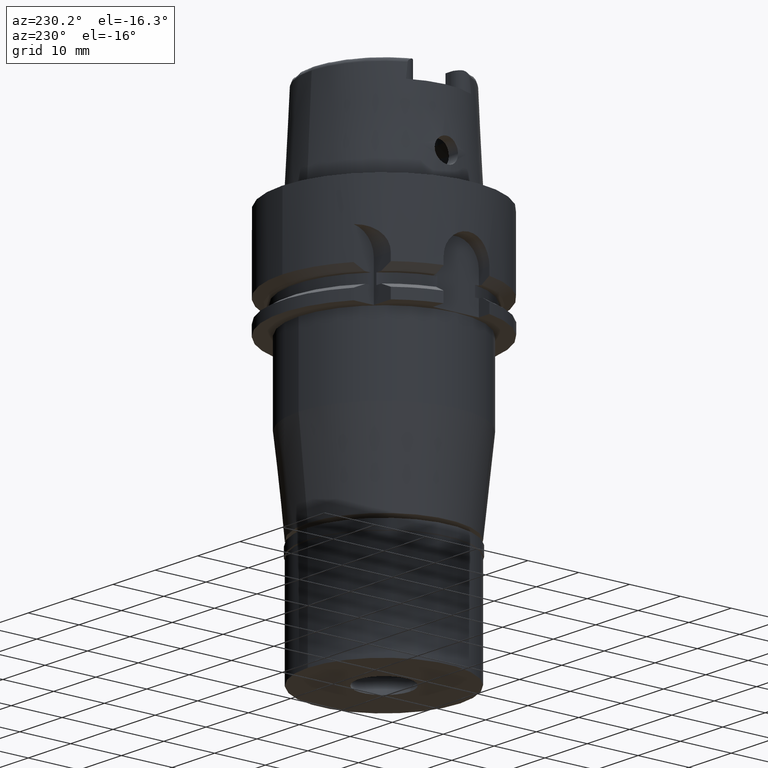
[diagram: clean part render]
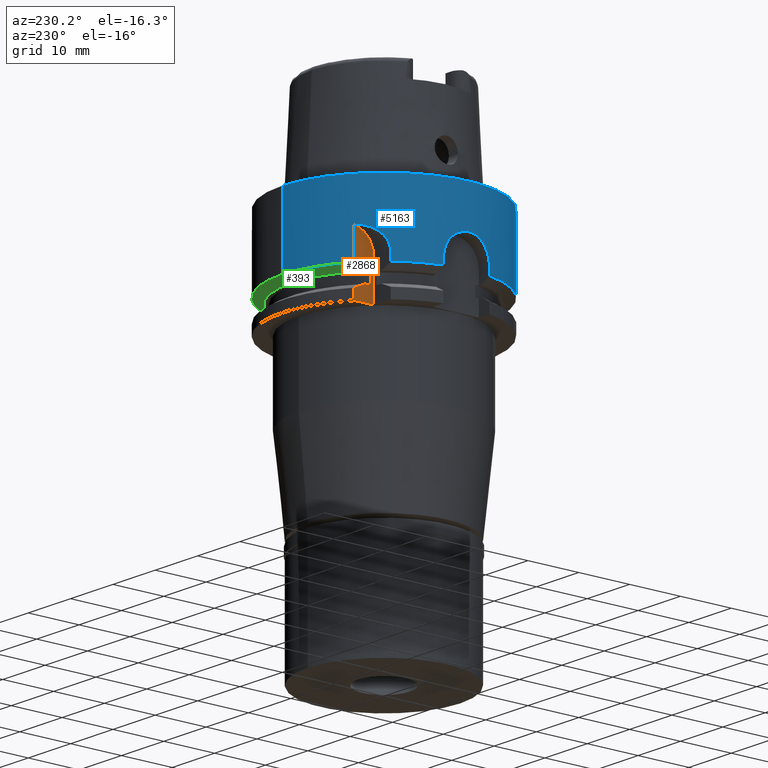
[diagram: same view with three faces highlighted in distinct colors, each labeled with its STEP entity id]
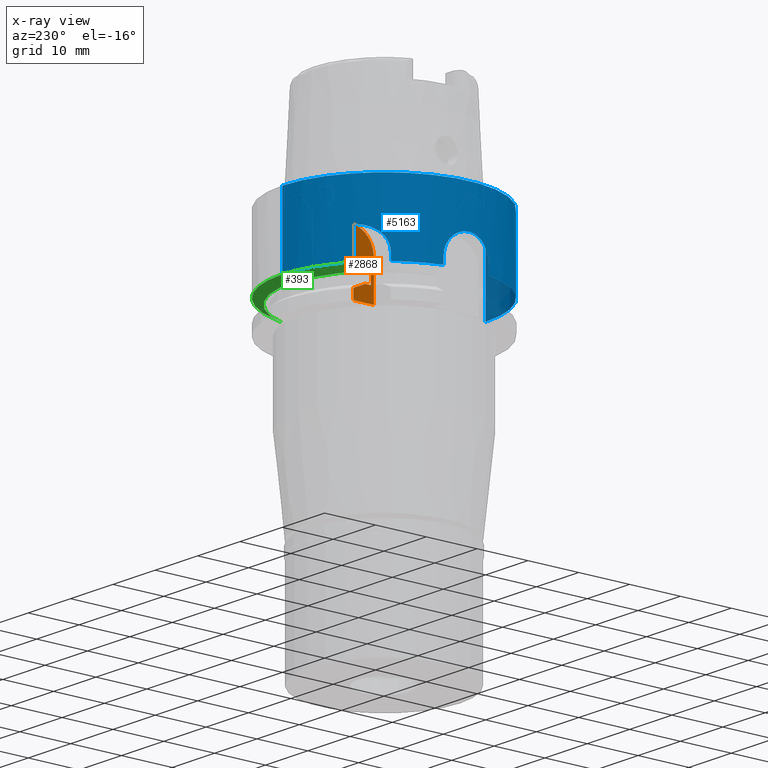
[diagram: x-ray of the same camera — body ghosted, the three highlighted faces saturated]
A machine part, auxiliary view with three faces highlighted in distinct colors.
The next image is the same camera in x-ray (body ghosted, the three faces saturated) — at least one of them is partly hidden behind the body in this view.
Their STEP definitions:

[orange] entity #2868 — the highlighted planar face has unit normal (1, 0, 0).
#16 = VERTEX_POINT ( 'NONE', #1858 ) ;
#32 = CARTESIAN_POINT ( 'NONE',  ( -12.00000000000000000, 12.59999999999999964, -15.00000000000000000 ) ) ;
#76 = VECTOR ( 'NONE', #1428, 1000.000000000000114 ) ;
#165 = EDGE_CURVE ( 'NONE', #2535, #3338, #5231, .T. ) ;
#192 = ORIENTED_EDGE ( 'NONE', *, *, #1375, .T. ) ;
#277 = EDGE_CURVE ( 'NONE', #389, #5203, #2154, .T. ) ;
#377 = CARTESIAN_POINT ( 'NONE',  ( -12.00000000000000000, 12.00000000000000000, -20.00000000000000000 ) ) ;
#389 = VERTEX_POINT ( 'NONE', #32 ) ;
#547 = B_SPLINE_CURVE_WITH_KNOTS ( 'NONE', 3,
 ( #2943, #2499, #4977, #4944 ),
 .UNSPECIFIED., .F., .F.,
 ( 4, 4 ),
 ( 0.0000000000000000000, 1.000000000000000000 ),
 .UNSPECIFIED. ) ;
#567 = ORIENTED_EDGE ( 'NONE', *, *, #733, .T. ) ;
#618 = DIRECTION ( 'NONE',  ( 0.0000000000000000000, -0.1111111111111011546, 0.9938079899999077149 ) ) ;
#647 = DIRECTION ( 'NONE',  ( 1.000000000000000000, 0.0000000000000000000, 0.0000000000000000000 ) ) ;
#733 = EDGE_CURVE ( 'NONE', #4935, #1835, #547, .T. ) ;
#756 = CARTESIAN_POINT ( 'NONE',  ( -12.00000248632000144, 13.72614523126000030, -15.00000000000000000 ) ) ;
#771 = CARTESIAN_POINT ( 'NONE',  ( -12.00000000000000000, 12.00000000000000000, -20.00000000000000000 ) ) ;
#803 = CARTESIAN_POINT ( 'NONE',  ( -12.00000000000000000, 12.00000000000000000, -20.00000000000000000 ) ) ;
#909 = CARTESIAN_POINT ( 'NONE',  ( -12.00000000000000000, 12.59999999999999964, -15.00000000000000000 ) ) ;
#963 = ORIENTED_EDGE ( 'NONE', *, *, #5317, .F. ) ;
#984 = CARTESIAN_POINT ( 'NONE',  ( -12.00000248632000144, 13.72614523126000030, -15.00000000000000000 ) ) ;
#1222 = ORIENTED_EDGE ( 'NONE', *, *, #165, .T. ) ;
#1231 = CARTESIAN_POINT ( 'NONE',  ( -12.00000000000000000, 12.59999999999999964, -15.00000000000000000 ) ) ;
#1255 = DIRECTION ( 'NONE',  ( -2.208557157325915231E-06, 0.9999999999975610621, -3.091661119828879814E-13 ) ) ;
#1375 = EDGE_CURVE ( 'NONE', #2432, #16, #4465, .T. ) ;
#1387 = CIRCLE ( 'NONE', #1553, 4.500000000000001776 ) ;
#1428 = DIRECTION ( 'NONE',  ( 4.229916271528087972E-06, 3.172442792338068757E-06, -0.9999999999860217370 ) ) ;
#1429 = CARTESIAN_POINT ( 'NONE',  ( -12.00000000000000000, 16.50000000000000000, -12.47213595500000061 ) ) ;
#1499 = DIRECTION ( 'NONE',  ( 0.0000000000000000000, 0.0000000000000000000, 1.000000000000000000 ) ) ;
#1523 = EDGE_CURVE ( 'NONE', #1835, #3709, #4739, .T. ) ;
#1553 = AXIS2_PLACEMENT_3D ( 'NONE', #1429, #5101, #618 ) ;
#1818 = ORIENTED_EDGE ( 'NONE', *, *, #4052, .F. ) ;
#1830 = AXIS2_PLACEMENT_3D ( 'NONE', #4040, #647, #3605 ) ;
#1835 = VERTEX_POINT ( 'NONE', #5358 ) ;
#1858 = CARTESIAN_POINT ( 'NONE',  ( -12.00000837001000065, 15.99999372247999929, -13.97924226165999961 ) ) ;
#1888 = VECTOR ( 'NONE', #1499, 1000.000000000000000 ) ;
#2069 = LINE ( 'NONE', #2123, #3736 ) ;
#2123 = CARTESIAN_POINT ( 'NONE',  ( -12.00000000000000000, 12.59999999999999964, -17.00000000000000000 ) ) ;
#2154 = LINE ( 'NONE', #909, #2500 ) ;
#2181 = LINE ( 'NONE', #1231, #2420 ) ;
#2224 = ORIENTED_EDGE ( 'NONE', *, *, #4016, .T. ) ;
#2412 = ORIENTED_EDGE ( 'NONE', *, *, #3889, .F. ) ;
#2420 = VECTOR ( 'NONE', #3321, 1000.000000000000000 ) ;
#2432 = VERTEX_POINT ( 'NONE', #5246 ) ;
#2451 = DIRECTION ( 'NONE',  ( 0.0000000000000000000, 1.000000000000000000, 0.0000000000000000000 ) ) ;
#2499 = CARTESIAN_POINT ( 'NONE',  ( -12.00000000000000000, 14.44842195221830750, -17.31394716292273372 ) ) ;
#2500 = VECTOR ( 'NONE', #2918, 1000.000000000000000 ) ;
#2521 = CARTESIAN_POINT ( 'NONE',  ( -12.00000000000000000, 16.00000000000000000, -8.000000000000000000 ) ) ;
#2535 = VERTEX_POINT ( 'NONE', #377 ) ;
#2677 = CARTESIAN_POINT ( 'NONE',  ( -12.00000837203000081, 15.99999372097000006, -18.02075773440000006 ) ) ;
#2868 = ADVANCED_FACE ( 'NONE', ( #3556 ), #3961, .F. ) ;
#2913 = EDGE_LOOP ( 'NONE', ( #1222, #4024, #192, #1818, #2412, #4604, #2224, #567, #3628, #963 ) ) ;
#2918 = DIRECTION ( 'NONE',  ( 0.0000000000000000000, 0.0000000000000000000, -1.000000000000000000 ) ) ;
#2943 = CARTESIAN_POINT ( 'NONE',  ( -12.00000248716000151, 13.72614522429000061, -17.00000000000000000 ) ) ;
#3274 = CARTESIAN_POINT ( 'NONE',  ( -12.00000248716000151, 13.72614522429000061, -17.00000000000000000 ) ) ;
#3321 = DIRECTION ( 'NONE',  ( -2.207812050168919698E-06, 0.9999999999975627274, 2.981244632801889355E-13 ) ) ;
#3331 = EDGE_CURVE ( 'NONE', #2432, #3338, #1387, .T. ) ;
#3338 = VERTEX_POINT ( 'NONE', #4741 ) ;
#3484 = CARTESIAN_POINT ( 'NONE',  ( -12.00001670505966622, 15.21251893774939390, -14.34299005094400137 ) ) ;
#3556 = FACE_OUTER_BOUND ( 'NONE', #2913, .T. ) ;
#3605 = DIRECTION ( 'NONE',  ( 0.0000000000000000000, 1.000000000000000000, 0.0000000000000000000 ) ) ;
#3614 = VECTOR ( 'NONE', #2451, 1000.000000000000000 ) ;
#3628 = ORIENTED_EDGE ( 'NONE', *, *, #1523, .T. ) ;
#3709 = VERTEX_POINT ( 'NONE', #5199 ) ;
#3736 = VECTOR ( 'NONE', #1255, 1000.000000000000227 ) ;
#3889 = EDGE_CURVE ( 'NONE', #389, #4385, #2181, .T. ) ;
#3961 = PLANE ( 'NONE',  #1830 ) ;
#4016 = EDGE_CURVE ( 'NONE', #5203, #4935, #2069, .T. ) ;
#4024 = ORIENTED_EDGE ( 'NONE', *, *, #3331, .F. ) ;
#4040 = CARTESIAN_POINT ( 'NONE',  ( -12.00000000000000000, 0.0000000000000000000, 0.0000000000000000000 ) ) ;
#4052 = EDGE_CURVE ( 'NONE', #4385, #16, #4896, .T. ) ;
#4172 = LINE ( 'NONE', #803, #3614 ) ;
#4182 = DIRECTION ( 'NONE',  ( -1.399844495667956067E-06, -1.049885223198968009E-06, -0.9999999999984691135 ) ) ;
#4385 = VERTEX_POINT ( 'NONE', #756 ) ;
#4457 = CARTESIAN_POINT ( 'NONE',  ( -12.00000000000000000, 12.59999999999999964, -17.00000000000000000 ) ) ;
#4465 = LINE ( 'NONE', #2521, #5365 ) ;
#4604 = ORIENTED_EDGE ( 'NONE', *, *, #277, .T. ) ;
#4739 = LINE ( 'NONE', #2677, #76 ) ;
#4741 = CARTESIAN_POINT ( 'NONE',  ( -12.00000000000000000, 12.00000000000000000, -12.47213595500000061 ) ) ;
#4896 = B_SPLINE_CURVE_WITH_KNOTS ( 'NONE', 3,
 ( #984, #5142, #3484, #5084 ),
 .UNSPECIFIED., .F., .F.,
 ( 4, 4 ),
 ( 0.0000000000000000000, 1.000000000000000000 ),
 .UNSPECIFIED. ) ;
#4935 = VERTEX_POINT ( 'NONE', #3274 ) ;
#4944 = CARTESIAN_POINT ( 'NONE',  ( -12.00000837203000081, 15.99999372097000006, -18.02075773440000006 ) ) ;
#4977 = CARTESIAN_POINT ( 'NONE',  ( -12.00000000000000000, 15.20637145111164124, -17.65419974105606471 ) ) ;
#5084 = CARTESIAN_POINT ( 'NONE',  ( -12.00000837001000065, 15.99999372247999929, -13.97924226165999961 ) ) ;
#5101 = DIRECTION ( 'NONE',  ( 1.000000000000000000, 0.0000000000000000000, 0.0000000000000000000 ) ) ;
#5142 = CARTESIAN_POINT ( 'NONE',  ( -12.00000501549136622, 14.45491865635034756, -14.68323687454174120 ) ) ;
#5199 = CARTESIAN_POINT ( 'NONE',  ( -12.00000000000000000, 16.00000000000000000, -20.00000000000000000 ) ) ;
#5203 = VERTEX_POINT ( 'NONE', #4457 ) ;
#5231 = LINE ( 'NONE', #771, #1888 ) ;
#5246 = CARTESIAN_POINT ( 'NONE',  ( -12.00000000000000000, 16.00000000000000000, -8.000000000000000000 ) ) ;
#5317 = EDGE_CURVE ( 'NONE', #2535, #3709, #4172, .T. ) ;
#5358 = CARTESIAN_POINT ( 'NONE',  ( -12.00000837203000081, 15.99999372097000006, -18.02075773440000006 ) ) ;
#5365 = VECTOR ( 'NONE', #4182, 1000.000000000000114 ) ;

[blue] entity #5163 — the highlighted cylindrical surface (partial cylindrical patch) has radius 20 mm, axis along (0, 0, 1).
#16 = VERTEX_POINT ( 'NONE', #1858 ) ;
#19 = CARTESIAN_POINT ( 'NONE',  ( -19.99366875188544768, -0.5780634421553966229, -8.026953253854301806 ) ) ;
#41 = CARTESIAN_POINT ( 'NONE',  ( -19.94976598718829308, -1.423478223440985513, -8.227886924069371943 ) ) ;
#120 = CARTESIAN_POINT ( 'NONE',  ( -15.82339665766270187, 12.23194632081410482, -11.04570656126147910 ) ) ;
#181 = EDGE_CURVE ( 'NONE', #2595, #2688, #2153, .T. ) ;
#198 = CARTESIAN_POINT ( 'NONE',  ( -15.50120068256048889, 12.63804433726034482, -10.15867116162934991 ) ) ;
#227 = AXIS2_PLACEMENT_3D ( 'NONE', #3269, #3301, #4519 ) ;
#308 = LINE ( 'NONE', #716, #4136 ) ;
#364 = EDGE_CURVE ( 'NONE', #857, #5012, #415, .T. ) ;
#395 = CARTESIAN_POINT ( 'NONE',  ( -19.65736858798971554, -3.686427608724740512, -9.918856522367946127 ) ) ;
#396 = EDGE_LOOP ( 'NONE', ( #4834, #2974, #3856, #2919, #4300, #4271, #811, #1627, #1685, #3347, #4352, #934 ) ) ;
#415 = LINE ( 'NONE', #4515, #856 ) ;
#425 = CARTESIAN_POINT ( 'NONE',  ( -19.78197669368470457, -2.947326971274241370, -9.095870546883119800 ) ) ;
#458 = CARTESIAN_POINT ( 'NONE',  ( -19.67653546002571474, 3.586347706470189411, -9.766231571011671164 ) ) ;
#716 = CARTESIAN_POINT ( 'NONE',  ( 0.0000000000000000000, -20.00000000000000000, 6.631732200427999741E-14 ) ) ;
#745 = AXIS2_PLACEMENT_3D ( 'NONE', #1501, #2702, #5254 ) ;
#785 = CARTESIAN_POINT ( 'NONE',  ( -19.76552295230704459, -3.055403931002893980, -9.192281543661337651 ) ) ;
#810 = CARTESIAN_POINT ( 'NONE',  ( -19.90118041453652964, 2.004798713352298201, -8.460162327902589041 ) ) ;
#811 = ORIENTED_EDGE ( 'NONE', *, *, #3494, .T. ) ;
#834 = CARTESIAN_POINT ( 'NONE',  ( -19.98671159481178705, 0.7429717590485459544, -8.058321218866888458 ) ) ;
#856 = VECTOR ( 'NONE', #3409, 1000.000000000000000 ) ;
#857 = VERTEX_POINT ( 'NONE', #2444 ) ;
#871 = CARTESIAN_POINT ( 'NONE',  ( -19.48717526991000071, 4.499999999998999911, -13.97927405783999966 ) ) ;
#924 = DIRECTION ( 'NONE',  ( 0.0000000000000000000, -4.549132851063000272E-14, -1.000000000000000000 ) ) ;
#934 = ORIENTED_EDGE ( 'NONE', *, *, #1375, .F. ) ;
#936 = EDGE_CURVE ( 'NONE', #4976, #1565, #2997, .T. ) ;
#937 = CARTESIAN_POINT ( 'NONE',  ( -15.93587169412999671, 12.08516720882030704, -11.59169772531774534 ) ) ;
#990 = CARTESIAN_POINT ( 'NONE',  ( -15.22212515425301937, 12.97255080656675297, -9.677937114240931393 ) ) ;
#1187 = CARTESIAN_POINT ( 'NONE',  ( -19.99159681306545622, 0.5979357171054494602, -8.036667302626362641 ) ) ;
#1201 = AXIS2_PLACEMENT_3D ( 'NONE', #1958, #1985, #2343 ) ;
#1218 = CARTESIAN_POINT ( 'NONE',  ( -19.96767860446979626, -1.145104512603522640, -8.144625051566510621 ) ) ;
#1238 = CARTESIAN_POINT ( 'NONE',  ( -15.65503738070506756, 12.44779583962546710, -10.49807288428188201 ) ) ;
#1244 = CARTESIAN_POINT ( 'NONE',  ( -19.61433225142420866, 3.909342097079245182, -10.26713070437060615 ) ) ;
#1266 = CARTESIAN_POINT ( 'NONE',  ( -19.68995404428261864, -3.508279000244050483, -9.680837972266896685 ) ) ;
#1344 = CARTESIAN_POINT ( 'NONE',  ( -16.00000000000000000, 12.00000000000000000, -12.47213595500000061 ) ) ;
#1375 = EDGE_CURVE ( 'NONE', #2432, #16, #4465, .T. ) ;
#1479 = FACE_OUTER_BOUND ( 'NONE', #396, .T. ) ;
#1501 = CARTESIAN_POINT ( 'NONE',  ( 0.0000000000000000000, 0.0000000000000000000, -72.71500000000000341 ) ) ;
#1529 = CIRCLE ( 'NONE', #227, 20.00000000000000000 ) ;
#1565 = VERTEX_POINT ( 'NONE', #871 ) ;
#1615 = CARTESIAN_POINT ( 'NONE',  ( -19.48717526990531823, 4.499999999998922640, -11.91117767533019745 ) ) ;
#1627 = ORIENTED_EDGE ( 'NONE', *, *, #5122, .F. ) ;
#1676 = VERTEX_POINT ( 'NONE', #3343 ) ;
#1681 = CARTESIAN_POINT ( 'NONE',  ( -19.97526835333010098, -1.004435706388498328, -8.109972964928434891 ) ) ;
#1685 = ORIENTED_EDGE ( 'NONE', *, *, #181, .T. ) ;
#1693 = LINE ( 'NONE', #4135, #5209 ) ;
#1728 = CARTESIAN_POINT ( 'NONE',  ( -15.91583159854562091, 12.11156371231805018, -11.46842417809094350 ) ) ;
#1784 = CARTESIAN_POINT ( 'NONE',  ( -15.81605664924862253, 12.24143539389179836, -11.01758593346831638 ) ) ;
#1807 = CARTESIAN_POINT ( 'NONE',  ( -12.73373743279245751, 15.44969692541302564, -8.061525754150595802 ) ) ;
#1821 = CARTESIAN_POINT ( 'NONE',  ( 0.0000000000000000000, 20.00000000000000000, 6.631732200427999741E-14 ) ) ;
#1823 = AXIS2_PLACEMENT_3D ( 'NONE', #3150, #4795, #2396 ) ;
#1836 = CARTESIAN_POINT ( 'NONE',  ( -14.43071793661021474, 13.86716777632435793, -8.776474959383770980 ) ) ;
#1858 = CARTESIAN_POINT ( 'NONE',  ( -12.00000837001000065, 15.99999372247999929, -13.97924226165999961 ) ) ;
#1902 = EDGE_CURVE ( 'NONE', #3756, #2432, #5083, .T. ) ;
#1915 = CIRCLE ( 'NONE', #1823, 20.00000000000000355 ) ;
#1958 = CARTESIAN_POINT ( 'NONE',  ( 0.0000000000000000000, 0.0000000000000000000, 1.278976924367999843E-13 ) ) ;
#1985 = DIRECTION ( 'NONE',  ( 0.0000000000000000000, 0.0000000000000000000, -1.000000000000000000 ) ) ;
#2000 = DIRECTION ( 'NONE',  ( 0.0000000000000000000, 0.0000000000000000000, 1.000000000000000000 ) ) ;
#2002 = CARTESIAN_POINT ( 'NONE',  ( -19.57319668099989585, 4.110134848932494478, -10.66167138091389788 ) ) ;
#2051 = CARTESIAN_POINT ( 'NONE',  ( -19.61685655609810297, -3.899891274473879843, -10.23528069071420532 ) ) ;
#2085 = CARTESIAN_POINT ( 'NONE',  ( -19.66533777196002930, -3.643700744078415266, -9.858775356932961031 ) ) ;
#2112 = CARTESIAN_POINT ( 'NONE',  ( -19.87297041677335230, 2.264651363370796311, -8.600550695166534254 ) ) ;
#2153 = CIRCLE ( 'NONE', #1201, 20.00000000000000000 ) ;
#2189 = CARTESIAN_POINT ( 'NONE',  ( -15.83842672935097440, 12.21248469480595311, -11.10531646016523943 ) ) ;
#2198 = EDGE_CURVE ( 'NONE', #1676, #3756, #1693, .T. ) ;
#2201 = CARTESIAN_POINT ( 'NONE',  ( 0.0000000000000000000, 20.00000000000000000, 6.631732200427999741E-14 ) ) ;
#2343 = DIRECTION ( 'NONE',  ( 0.0000000000000000000, -1.000000000000000000, 0.0000000000000000000 ) ) ;
#2396 = DIRECTION ( 'NONE',  ( -0.9743587634952779464, -0.2249999999998949785, 0.0000000000000000000 ) ) ;
#2432 = VERTEX_POINT ( 'NONE', #5246 ) ;
#2444 = CARTESIAN_POINT ( 'NONE',  ( -19.48717526991000071, -4.499999999998999911, -13.97927405783999966 ) ) ;
#2458 = CARTESIAN_POINT ( 'NONE',  ( -19.93935056592481914, -1.562269832045909634, -8.276940232615981330 ) ) ;
#2485 = CARTESIAN_POINT ( 'NONE',  ( -19.83077151062163779, -2.599276559191146418, -8.824082361885142944 ) ) ;
#2496 = CARTESIAN_POINT ( 'NONE',  ( 0.0000000000000000000, -20.00000000000000000, 1.278976924367999843E-13 ) ) ;
#2518 = CARTESIAN_POINT ( 'NONE',  ( -19.48717526991000071, -4.500000000000000000, -12.50000000000000000 ) ) ;
#2521 = CARTESIAN_POINT ( 'NONE',  ( -12.00000000000000000, 16.00000000000000000, -8.000000000000000000 ) ) ;
#2593 = CARTESIAN_POINT ( 'NONE',  ( -15.86022033329897951, 12.18421403669635161, -11.19507518136485302 ) ) ;
#2595 = VERTEX_POINT ( 'NONE', #2496 ) ;
#2621 = CARTESIAN_POINT ( 'NONE',  ( -15.44554362519219026, 12.70607694484739980, -10.04877530007000175 ) ) ;
#2652 = AXIS2_PLACEMENT_3D ( 'NONE', #4899, #2000, #5261 ) ;
#2688 = VERTEX_POINT ( 'NONE', #1821 ) ;
#2694 = EDGE_CURVE ( 'NONE', #2688, #2817, #4266, .T. ) ;
#2702 = DIRECTION ( 'NONE',  ( 0.0000000000000000000, 0.0000000000000000000, 1.000000000000000000 ) ) ;
#2717 = CARTESIAN_POINT ( 'NONE',  ( -16.00000000000000000, 12.00000000000000000, -12.47213595500000061 ) ) ;
#2729 = EDGE_CURVE ( 'NONE', #4976, #5012, #2784, .T. ) ;
#2784 = B_SPLINE_CURVE_WITH_KNOTS ( 'NONE', 3,
 ( #2930, #1615, #4204, #2002, #4525, #1244, #4901, #458, #4180, #3770, #3276, #3661, #2903, #2112, #810, #5319, #5339, #834, #1187, #4930, #4548, #4148, #19, #1681, #1218, #41, #2458, #3336, #3712, #2485, #4119, #425, #785, #2844, #4990, #1266, #4576, #2085, #395, #2051, #5364, #4495, #3747, #2518 ),
 .UNSPECIFIED., .F., .F.,
 ( 4, 2, 2, 2, 2, 2, 2, 2, 2, 2, 2, 2, 2, 2, 2, 2, 2, 2, 2, 2, 2, 4 ),
 ( 0.0000000000000000000, 0.1250000000000000000, 0.1562500000000000000, 0.1875000000000000000, 0.2499999999999999445, 0.2812500000000000555, 0.3125000000000001665, 0.3750000000000003331, 0.4375000000000004996, 0.4687500000000005551, 0.5000000000000006661, 0.5625000000000008882, 0.5937500000000009992, 0.6250000000000011102, 0.6875000000000012212, 0.7187500000000012212, 0.7500000000000012212, 0.7812500000000012212, 0.7968750000000011102, 0.8125000000000009992, 0.8750000000000007772, 1.000000000000000000 ),
 .UNSPECIFIED. ) ;
#2817 = VERTEX_POINT ( 'NONE', #3928 ) ;
#2835 = VERTEX_POINT ( 'NONE', #3205 ) ;
#2844 = CARTESIAN_POINT ( 'NONE',  ( -19.73178862830594227, -3.266176401791699213, -9.400222920104670976 ) ) ;
#2903 = CARTESIAN_POINT ( 'NONE',  ( -19.82540444351630882, 2.639931513675224384, -8.853182873740232495 ) ) ;
#2919 = ORIENTED_EDGE ( 'NONE', *, *, #936, .F. ) ;
#2930 = CARTESIAN_POINT ( 'NONE',  ( -19.48717526991000071, 4.500000000000000000, -12.50000000000000000 ) ) ;
#2974 = ORIENTED_EDGE ( 'NONE', *, *, #2198, .F. ) ;
#2997 = LINE ( 'NONE', #3807, #4240 ) ;
#3007 = CARTESIAN_POINT ( 'NONE',  ( -15.98396792353249829, 12.02157036252879685, -11.96484098787969685 ) ) ;
#3036 = CARTESIAN_POINT ( 'NONE',  ( -15.20938066174563730, 12.98748253581669942, -9.659257612370861779 ) ) ;
#3064 = CARTESIAN_POINT ( 'NONE',  ( -12.00000000000000000, 16.00000000000000000, -8.000000000000000000 ) ) ;
#3067 = CARTESIAN_POINT ( 'NONE',  ( -19.48717526991000071, -4.500000000000000000, -12.50000000000000000 ) ) ;
#3087 = CARTESIAN_POINT ( 'NONE',  ( -15.35549080215960238, 12.81448691345269708, -9.889283744369498308 ) ) ;
#3142 = CARTESIAN_POINT ( 'NONE',  ( -15.19743003976705253, 13.00146744842990643, -9.641877765659819133 ) ) ;
#3150 = CARTESIAN_POINT ( 'NONE',  ( 0.0000000000000000000, 0.0000000000000000000, -13.97927405783999966 ) ) ;
#3205 = CARTESIAN_POINT ( 'NONE',  ( 0.0000000000000000000, -20.00000000000000000, -13.97927405783999966 ) ) ;
#3269 = CARTESIAN_POINT ( 'NONE',  ( 0.0000000000000000000, 0.0000000000000000000, -13.97927405783999966 ) ) ;
#3276 = CARTESIAN_POINT ( 'NONE',  ( -19.77639393899677955, 2.984524730632446943, -9.128351522776839033 ) ) ;
#3301 = DIRECTION ( 'NONE',  ( 0.0000000000000000000, 0.0000000000000000000, 1.000000000000000000 ) ) ;
#3336 = CARTESIAN_POINT ( 'NONE',  ( -19.90482517660177564, -1.967609403511935584, -8.442375571004973267 ) ) ;
#3343 = CARTESIAN_POINT ( 'NONE',  ( -16.00000135504999932, 11.99999819325999972, -13.97928092000000078 ) ) ;
#3347 = ORIENTED_EDGE ( 'NONE', *, *, #2694, .T. ) ;
#3385 = CARTESIAN_POINT ( 'NONE',  ( -15.87975942649375050, 12.15873503973221403, -11.28580921236601498 ) ) ;
#3409 = DIRECTION ( 'NONE',  ( -1.513045946951999976E-12, -1.525054248117999851E-13, 1.000000000000000000 ) ) ;
#3435 = CARTESIAN_POINT ( 'NONE',  ( -13.36662850667299729, 14.89559472090893522, -8.227657257566276527 ) ) ;
#3480 = VECTOR ( 'NONE', #924, 1000.000000000000000 ) ;
#3491 = CARTESIAN_POINT ( 'NONE',  ( -14.86191629266689951, 13.39340330530355949, -9.159498726332108376 ) ) ;
#3494 = EDGE_CURVE ( 'NONE', #857, #2835, #1915, .T. ) ;
#3661 = CARTESIAN_POINT ( 'NONE',  ( -19.80931123916923653, 2.757595570033498422, -8.941036147449604954 ) ) ;
#3712 = CARTESIAN_POINT ( 'NONE',  ( -19.87734037151718169, -2.225823242179692407, -8.578461760979749329 ) ) ;
#3747 = CARTESIAN_POINT ( 'NONE',  ( -19.48717526990532889, -4.499999999998897771, -11.90391827190513752 ) ) ;
#3756 = VERTEX_POINT ( 'NONE', #2717 ) ;
#3770 = CARTESIAN_POINT ( 'NONE',  ( -19.75970552063601815, 3.092719504072076298, -9.227093002249331377 ) ) ;
#3807 = CARTESIAN_POINT ( 'NONE',  ( -19.48717526991000071, 4.500000000000000000, -12.50000000000000000 ) ) ;
#3856 = ORIENTED_EDGE ( 'NONE', *, *, #5255, .T. ) ;
#3928 = CARTESIAN_POINT ( 'NONE',  ( 0.0000000000000000000, 20.00000000000000000, -13.97927405783999966 ) ) ;
#4007 = CYLINDRICAL_SURFACE ( 'NONE', #745, 20.00000000000000000 ) ;
#4119 = CARTESIAN_POINT ( 'NONE',  ( -19.81469531612803792, -2.718673888883853973, -8.911189412338798022 ) ) ;
#4135 = CARTESIAN_POINT ( 'NONE',  ( -16.00000135504999932, 11.99999819325999972, -13.97928092000000078 ) ) ;
#4136 = VECTOR ( 'NONE', #4840, 1000.000000000000000 ) ;
#4148 = CARTESIAN_POINT ( 'NONE',  ( -20.00011160723646597, -0.2879901758502551590, -7.999522178258328786 ) ) ;
#4180 = CARTESIAN_POINT ( 'NONE',  ( -19.70971456379695042, 3.401566784018431822, -9.538568816093444980 ) ) ;
#4182 = DIRECTION ( 'NONE',  ( -1.399844495667956067E-06, -1.049885223198968009E-06, -0.9999999999984691135 ) ) ;
#4204 = CARTESIAN_POINT ( 'NONE',  ( -19.51394597212943793, 4.388359742437826228, -11.34217538143940907 ) ) ;
#4240 = VECTOR ( 'NONE', #5082, 1000.000000000000000 ) ;
#4254 = CARTESIAN_POINT ( 'NONE',  ( -19.48717526991000071, 4.500000000000000000, -12.50000000000000000 ) ) ;
#4266 = LINE ( 'NONE', #2201, #3480 ) ;
#4271 = ORIENTED_EDGE ( 'NONE', *, *, #364, .F. ) ;
#4299 = CARTESIAN_POINT ( 'NONE',  ( -15.30882258139827456, 12.87028166561311338, -9.810875033657104893 ) ) ;
#4300 = ORIENTED_EDGE ( 'NONE', *, *, #2729, .T. ) ;
#4351 = CARTESIAN_POINT ( 'NONE',  ( -15.25150315766457787, 12.93802961974866861, -9.721835856337282422 ) ) ;
#4352 = ORIENTED_EDGE ( 'NONE', *, *, #4783, .T. ) ;
#4465 = LINE ( 'NONE', #2521, #5365 ) ;
#4467 = CIRCLE ( 'NONE', #2652, 20.00000000000000000 ) ;
#4495 = CARTESIAN_POINT ( 'NONE',  ( -19.51451585934717059, -4.386168089306559104, -11.32960978474190128 ) ) ;
#4515 = CARTESIAN_POINT ( 'NONE',  ( -19.48717526991000071, -4.499999999998999911, -13.97927405783999966 ) ) ;
#4519 = DIRECTION ( 'NONE',  ( -0.8000000000000000444, 0.5999999999999999778, 0.0000000000000000000 ) ) ;
#4525 = CARTESIAN_POINT ( 'NONE',  ( -19.58624112365995629, 4.047733186254640181, -10.52832292556320049 ) ) ;
#4548 = CARTESIAN_POINT ( 'NONE',  ( -19.99994200225665253, 0.1554688624627048876, -8.000248662544523270 ) ) ;
#4576 = CARTESIAN_POINT ( 'NONE',  ( -19.68169165534417075, -3.554304204993032457, -9.739288420005243196 ) ) ;
#4628 = CARTESIAN_POINT ( 'NONE',  ( -16.00000000000000000, 12.00000000000000533, -12.21804523175418389 ) ) ;
#4760 = CARTESIAN_POINT ( 'NONE',  ( -15.20085012904809929, 12.99746725643082357, -9.646834575173322435 ) ) ;
#4783 = EDGE_CURVE ( 'NONE', #2817, #16, #4467, .T. ) ;
#4795 = DIRECTION ( 'NONE',  ( 0.0000000000000000000, 0.0000000000000000000, 1.000000000000000000 ) ) ;
#4834 = ORIENTED_EDGE ( 'NONE', *, *, #1902, .F. ) ;
#4840 = DIRECTION ( 'NONE',  ( 0.0000000000000000000, 4.549132851063000272E-14, -1.000000000000000000 ) ) ;
#4899 = CARTESIAN_POINT ( 'NONE',  ( 0.0000000000000000000, 0.0000000000000000000, -13.97927405783999966 ) ) ;
#4901 = CARTESIAN_POINT ( 'NONE',  ( -19.62951920186990051, 3.832617943228760371, -10.13817749065596985 ) ) ;
#4930 = CARTESIAN_POINT ( 'NONE',  ( -19.99821172661914659, 0.3049557267397455251, -8.007632288274313836 ) ) ;
#4950 = DIRECTION ( 'NONE',  ( 8.990857238089801866E-07, 1.198782095771972297E-06, 0.9999999999988772315 ) ) ;
#4957 = CARTESIAN_POINT ( 'NONE',  ( -15.74008254752106239, 12.33945798784314185, -10.73733354108056304 ) ) ;
#4976 = VERTEX_POINT ( 'NONE', #4254 ) ;
#4990 = CARTESIAN_POINT ( 'NONE',  ( -19.71491488624149113, -3.366211262875893784, -9.509365691228348183 ) ) ;
#5012 = VERTEX_POINT ( 'NONE', #3067 ) ;
#5082 = DIRECTION ( 'NONE',  ( 1.517849267418000129E-12, -1.513045946952000077E-13, -1.000000000000000000 ) ) ;
#5083 = B_SPLINE_CURVE_WITH_KNOTS ( 'NONE', 3,
 ( #1344, #4628, #3007, #937, #1728, #3385, #2593, #2189, #120, #1784, #4957, #1238, #198, #2621, #3087, #4299, #4351, #990, #3036, #4760, #3142, #3491, #1836, #3435, #1807, #3064 ),
 .UNSPECIFIED., .F., .F.,
 ( 4, 2, 2, 1, 2, 2, 2, 2, 1, 1, 1, 2, 2, 2, 4 ),
 ( 0.0000000000000000000, 0.1249999999999980571, 0.1874999999999969746, 0.2187499999999958922, 0.2343749999999953371, 0.2499999999999947820, 0.3749999999999923950, 0.4374999999999908962, 0.4687499999999900635, 0.4843749999999896194, 0.4921874999999890643, 0.4960937499999890643, 0.4999999999999890643, 0.7499999999999945599, 1.000000000000000000 ),
 .UNSPECIFIED. ) ;
#5122 = EDGE_CURVE ( 'NONE', #2595, #2835, #308, .T. ) ;
#5163 = ADVANCED_FACE ( 'NONE', ( #1479 ), #4007, .T. ) ;
#5209 = VECTOR ( 'NONE', #4950, 1000.000000000000227 ) ;
#5246 = CARTESIAN_POINT ( 'NONE',  ( -12.00000000000000000, 16.00000000000000000, -8.000000000000000000 ) ) ;
#5254 = DIRECTION ( 'NONE',  ( 0.0000000000000000000, 1.000000000000000000, 0.0000000000000000000 ) ) ;
#5255 = EDGE_CURVE ( 'NONE', #1676, #1565, #1529, .T. ) ;
#5261 = DIRECTION ( 'NONE',  ( 0.0000000000000000000, 1.000000000000000000, 0.0000000000000000000 ) ) ;
#5319 = CARTESIAN_POINT ( 'NONE',  ( -19.94893006898949750, 1.454781384111845766, -8.230818481650194585 ) ) ;
#5339 = CARTESIAN_POINT ( 'NONE',  ( -19.96760365587463326, 1.173624248902514600, -8.144692194782043870 ) ) ;
#5364 = CARTESIAN_POINT ( 'NONE',  ( -19.58750363046315002, -4.042697300031762531, -10.50080691539449695 ) ) ;
#5365 = VECTOR ( 'NONE', #4182, 1000.000000000000114 ) ;

[green] entity #393 — the highlighted conical surface has half-angle 60 deg.
#3 = CIRCLE ( 'NONE', #259, 20.00000000000000355 ) ;
#16 = VERTEX_POINT ( 'NONE', #1858 ) ;
#189 = ORIENTED_EDGE ( 'NONE', *, *, #4354, .F. ) ;
#228 = CARTESIAN_POINT ( 'NONE',  ( 17.98581978812000060, 5.499999994836999306, -14.66765603564999942 ) ) ;
#253 = CARTESIAN_POINT ( 'NONE',  ( 0.0000000000000000000, 0.0000000000000000000, -15.00000000000000000 ) ) ;
#258 = EDGE_LOOP ( 'NONE', ( #3598, #189, #4571, #3619, #3359 ) ) ;
#259 = AXIS2_PLACEMENT_3D ( 'NONE', #4019, #4500, #1948 ) ;
#278 = VERTEX_POINT ( 'NONE', #2473 ) ;
#393 = ADVANCED_FACE ( 'NONE', ( #2538 ), #3625, .T. ) ;
#693 = CARTESIAN_POINT ( 'NONE',  ( 19.01848682262999901, 5.500000482598000673, -14.09605961155999942 ) ) ;
#723 = CARTESIAN_POINT ( 'NONE',  ( 19.22888438498999975, 5.500000482598000673, -13.97927001376999989 ) ) ;
#756 = CARTESIAN_POINT ( 'NONE',  ( -12.00000248632000144, 13.72614523126000030, -15.00000000000000000 ) ) ;
#800 = DIRECTION ( 'NONE',  ( 0.0000000000000000000, 0.0000000000000000000, 1.000000000000000000 ) ) ;
#844 = AXIS2_PLACEMENT_3D ( 'NONE', #253, #1913, #1990 ) ;
#984 = CARTESIAN_POINT ( 'NONE',  ( -12.00000248632000144, 13.72614523126000030, -15.00000000000000000 ) ) ;
#1011 = CIRCLE ( 'NONE', #844, 18.23205080757000474 ) ;
#1858 = CARTESIAN_POINT ( 'NONE',  ( -12.00000837001000065, 15.99999372247999929, -13.97924226165999961 ) ) ;
#1913 = DIRECTION ( 'NONE',  ( 0.0000000000000000000, 0.0000000000000000000, 1.000000000000000000 ) ) ;
#1940 = CARTESIAN_POINT ( 'NONE',  ( 17.38268111991999731, 5.500000148948000600, -15.00000000000000000 ) ) ;
#1948 = DIRECTION ( 'NONE',  ( 0.9614442261514726251, 0.2749999999999924727, 0.0000000000000000000 ) ) ;
#1990 = DIRECTION ( 'NONE',  ( 0.9534134927694348782, 0.3016665573198109573, 0.0000000000000000000 ) ) ;
#2000 = DIRECTION ( 'NONE',  ( 0.0000000000000000000, 0.0000000000000000000, 1.000000000000000000 ) ) ;
#2125 = DIRECTION ( 'NONE',  ( 0.0000000000000000000, 1.000000000000000000, 0.0000000000000000000 ) ) ;
#2473 = CARTESIAN_POINT ( 'NONE',  ( 17.38268111991999731, 5.500000148948000600, -15.00000000000000000 ) ) ;
#2538 = FACE_OUTER_BOUND ( 'NONE', #258, .T. ) ;
#2652 = AXIS2_PLACEMENT_3D ( 'NONE', #4899, #2000, #5261 ) ;
#2817 = VERTEX_POINT ( 'NONE', #3928 ) ;
#3359 = ORIENTED_EDGE ( 'NONE', *, *, #4052, .T. ) ;
#3436 = EDGE_CURVE ( 'NONE', #278, #4823, #4790, .T. ) ;
#3484 = CARTESIAN_POINT ( 'NONE',  ( -12.00001670505966622, 15.21251893774939390, -14.34299005094400137 ) ) ;
#3598 = ORIENTED_EDGE ( 'NONE', *, *, #4783, .F. ) ;
#3619 = ORIENTED_EDGE ( 'NONE', *, *, #5219, .T. ) ;
#3625 = CONICAL_SURFACE ( 'NONE', #3805, 19.11602540378000015, 1.047197551196400456 ) ;
#3805 = AXIS2_PLACEMENT_3D ( 'NONE', #4195, #800, #2125 ) ;
#3928 = CARTESIAN_POINT ( 'NONE',  ( 0.0000000000000000000, 20.00000000000000000, -13.97927405783999966 ) ) ;
#4019 = CARTESIAN_POINT ( 'NONE',  ( 0.0000000000000000000, 0.0000000000000000000, -13.97927405783999966 ) ) ;
#4034 = CARTESIAN_POINT ( 'NONE',  ( 19.22888438498999975, 5.500000482598000673, -13.97927001376999989 ) ) ;
#4052 = EDGE_CURVE ( 'NONE', #4385, #16, #4896, .T. ) ;
#4195 = CARTESIAN_POINT ( 'NONE',  ( 0.0000000000000000000, 0.0000000000000000000, -14.48963702891999894 ) ) ;
#4354 = EDGE_CURVE ( 'NONE', #4823, #2817, #3, .T. ) ;
#4385 = VERTEX_POINT ( 'NONE', #756 ) ;
#4406 = CARTESIAN_POINT ( 'NONE',  ( 18.60121409664999703, 5.499999794646999618, -14.32740018794999948 ) ) ;
#4467 = CIRCLE ( 'NONE', #2652, 20.00000000000000000 ) ;
#4500 = DIRECTION ( 'NONE',  ( 0.0000000000000000000, 0.0000000000000000000, 1.000000000000000000 ) ) ;
#4571 = ORIENTED_EDGE ( 'NONE', *, *, #3436, .F. ) ;
#4783 = EDGE_CURVE ( 'NONE', #2817, #16, #4467, .T. ) ;
#4790 = B_SPLINE_CURVE_WITH_KNOTS ( 'NONE', 3,
 ( #1940, #4871, #228, #4406, #693, #4034 ),
 .UNSPECIFIED., .F., .F.,
 ( 4, 1, 1, 4 ),
 ( 0.0000000000000000000, 0.3333333333333000081, 0.6666666666667000474, 1.000000000000000000 ),
 .UNSPECIFIED. ) ;
#4823 = VERTEX_POINT ( 'NONE', #723 ) ;
#4871 = CARTESIAN_POINT ( 'NONE',  ( 17.58256370876000219, 5.500000148948000600, -14.88997392295000033 ) ) ;
#4896 = B_SPLINE_CURVE_WITH_KNOTS ( 'NONE', 3,
 ( #984, #5142, #3484, #5084 ),
 .UNSPECIFIED., .F., .F.,
 ( 4, 4 ),
 ( 0.0000000000000000000, 1.000000000000000000 ),
 .UNSPECIFIED. ) ;
#4899 = CARTESIAN_POINT ( 'NONE',  ( 0.0000000000000000000, 0.0000000000000000000, -13.97927405783999966 ) ) ;
#5084 = CARTESIAN_POINT ( 'NONE',  ( -12.00000837001000065, 15.99999372247999929, -13.97924226165999961 ) ) ;
#5142 = CARTESIAN_POINT ( 'NONE',  ( -12.00000501549136622, 14.45491865635034756, -14.68323687454174120 ) ) ;
#5219 = EDGE_CURVE ( 'NONE', #278, #4385, #1011, .T. ) ;
#5261 = DIRECTION ( 'NONE',  ( 0.0000000000000000000, 1.000000000000000000, 0.0000000000000000000 ) ) ;